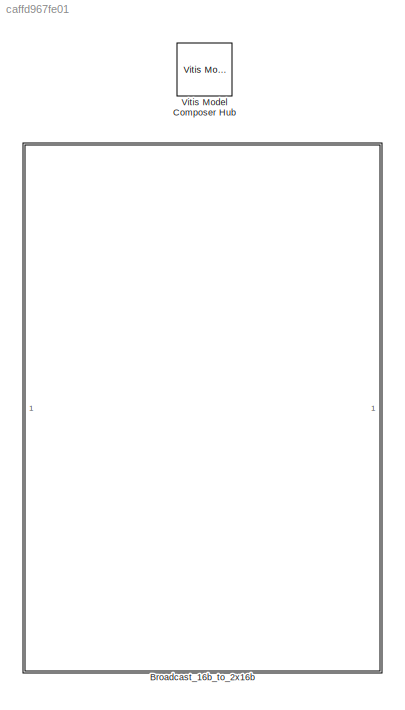
MODEL slx_caffd967fe01
KIND model
CONFIG AbsTol = auto
CONFIG EnableMultiTasking = off
CONFIG FixedStep = auto
CONFIG MaxStep = auto
CONFIG MinStep = auto
CONFIG RelTol = 1e-3
CONFIG SampleTimeConstraint = Unconstrained
CONFIG SolverName = VariableStepAuto
CONFIG StartTime = 0.0
CONFIG StopTime = 5/128e6
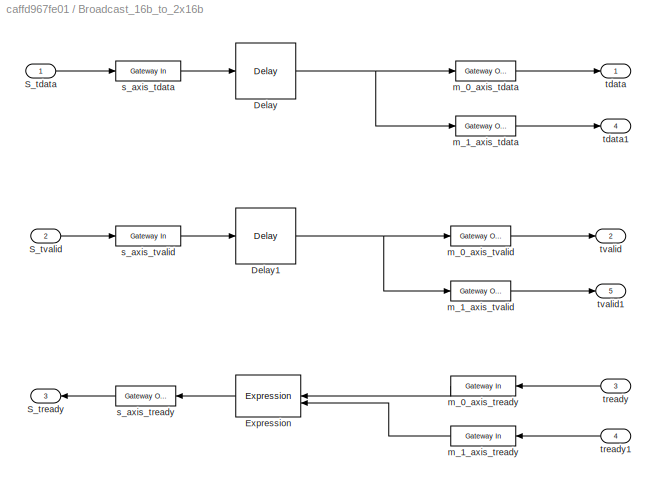
BLOCK [SubSystem] Broadcast_16b_to_2x16b
  PortSchema = {"entries":[{"content":{"sides":[{"content":{"connectorIds":["In1","In2","Out3","Out4","Out5"]},"type":"ConnectorPlacement.EquallySpacedRectSide","uuid":"eb74909a-28d6-49bb-8ba1-8d6247087b66"},{"content":{"connectorIds":["Out1","In3","In4","Out2"],"side":"RIGHT"},"type":"ConnectorPlacement.EquallySpacedRectSide","uuid":"e220c643-32b2-4718-b969-1ae45378effa"},{"content":{"side":"TOP"},"type":"Conne...<+268ch>
BLOCK [Reference] Broadcast_16b_to_2x16b/Delay  REF=hdlBasic/Delay
  SourceBlock = hdlBasic/Delay
  SourceType = Delay Block
BLOCK [Reference] Broadcast_16b_to_2x16b/Delay1  REF=hdlBasic/Delay
  SourceBlock = hdlBasic/Delay
  SourceType = Delay Block
BLOCK [Reference] Broadcast_16b_to_2x16b/Expression  REF=hdlBasic/Expression
  SourceBlock = hdlBasic/Expression
  SourceType = Bitwise Expression Evaluator Block
BLOCK [Inport] Broadcast_16b_to_2x16b/S_tdata
BLOCK [Outport] Broadcast_16b_to_2x16b/S_tready
  Port = 3
BLOCK [Inport] Broadcast_16b_to_2x16b/S_tvalid
  Port = 2
BLOCK [Reference] Broadcast_16b_to_2x16b/m_0_axis_tdata  REF=hdlBasic/Gateway Out
  SourceBlock = hdlBasic/Gateway Out
  SourceType = Gateway Out Block
BLOCK [Reference] Broadcast_16b_to_2x16b/m_0_axis_tready  REF=hdlBasic/Gateway In
  SourceBlock = hdlBasic/Gateway In
  SourceType = Gateway In Block
BLOCK [Reference] Broadcast_16b_to_2x16b/m_0_axis_tvalid  REF=hdlBasic/Gateway Out
  SourceBlock = hdlBasic/Gateway Out
  SourceType = Gateway Out Block
BLOCK [Reference] Broadcast_16b_to_2x16b/m_1_axis_tdata  REF=hdlBasic/Gateway Out
  SourceBlock = hdlBasic/Gateway Out
  SourceType = Gateway Out Block
BLOCK [Reference] Broadcast_16b_to_2x16b/m_1_axis_tready  REF=hdlBasic/Gateway In
  SourceBlock = hdlBasic/Gateway In
  SourceType = Gateway In Block
BLOCK [Reference] Broadcast_16b_to_2x16b/m_1_axis_tvalid  REF=hdlBasic/Gateway Out
  SourceBlock = hdlBasic/Gateway Out
  SourceType = Gateway Out Block
BLOCK [Reference] Broadcast_16b_to_2x16b/s_axis_tdata  REF=hdlBasic/Gateway In
  SourceBlock = hdlBasic/Gateway In
  SourceType = Gateway In Block
BLOCK [Reference] Broadcast_16b_to_2x16b/s_axis_tready  REF=hdlBasic/Gateway Out
  SourceBlock = hdlBasic/Gateway Out
  SourceType = Gateway Out Block
BLOCK [Reference] Broadcast_16b_to_2x16b/s_axis_tvalid  REF=hdlBasic/Gateway In
  SourceBlock = hdlBasic/Gateway In
  SourceType = Gateway In Block
BLOCK [Outport] Broadcast_16b_to_2x16b/tdata
BLOCK [Outport] Broadcast_16b_to_2x16b/tdata1
  Port = 4
BLOCK [Inport] Broadcast_16b_to_2x16b/tready
  Port = 3
BLOCK [Inport] Broadcast_16b_to_2x16b/tready1
  Port = 4
BLOCK [Outport] Broadcast_16b_to_2x16b/tvalid
  Port = 2
BLOCK [Outport] Broadcast_16b_to_2x16b/tvalid1
  Port = 5
BLOCK [Reference] Vitis Model Composer Hub  REF=vmcUtilities/Vitis Model Composer Hub
  SourceBlock = vmcUtilities/Vitis Model Composer Hub
  SourceType = VMC Hub
  Tag = genX
  UserDataPersistent = on
NET Broadcast_16b_to_2x16b/Delay1:1 -> Broadcast_16b_to_2x16b/m_0_axis_tvalid:1, Broadcast_16b_to_2x16b/m_1_axis_tvalid:1
NET Broadcast_16b_to_2x16b/Delay:1 -> Broadcast_16b_to_2x16b/m_0_axis_tdata:1, Broadcast_16b_to_2x16b/m_1_axis_tdata:1
LINE Broadcast_16b_to_2x16b/Expression:1 -> Broadcast_16b_to_2x16b/s_axis_tready:1
LINE Broadcast_16b_to_2x16b/S_tdata:1 -> Broadcast_16b_to_2x16b/s_axis_tdata:1
LINE Broadcast_16b_to_2x16b/S_tvalid:1 -> Broadcast_16b_to_2x16b/s_axis_tvalid:1
LINE Broadcast_16b_to_2x16b/m_0_axis_tdata:1 -> Broadcast_16b_to_2x16b/tdata:1
LINE Broadcast_16b_to_2x16b/m_0_axis_tready:1 -> Broadcast_16b_to_2x16b/Expression:1
LINE Broadcast_16b_to_2x16b/m_0_axis_tvalid:1 -> Broadcast_16b_to_2x16b/tvalid:1
LINE Broadcast_16b_to_2x16b/m_1_axis_tdata:1 -> Broadcast_16b_to_2x16b/tdata1:1
LINE Broadcast_16b_to_2x16b/m_1_axis_tready:1 -> Broadcast_16b_to_2x16b/Expression:2
LINE Broadcast_16b_to_2x16b/m_1_axis_tvalid:1 -> Broadcast_16b_to_2x16b/tvalid1:1
LINE Broadcast_16b_to_2x16b/s_axis_tdata:1 -> Broadcast_16b_to_2x16b/Delay:1
LINE Broadcast_16b_to_2x16b/s_axis_tready:1 -> Broadcast_16b_to_2x16b/S_tready:1
LINE Broadcast_16b_to_2x16b/s_axis_tvalid:1 -> Broadcast_16b_to_2x16b/Delay1:1
LINE Broadcast_16b_to_2x16b/tready1:1 -> Broadcast_16b_to_2x16b/m_1_axis_tready:1
LINE Broadcast_16b_to_2x16b/tready:1 -> Broadcast_16b_to_2x16b/m_0_axis_tready:1
note: NET lines group one-source signal fan-out (src -> all destinations, sorted); 1:1 wires keep LINE
